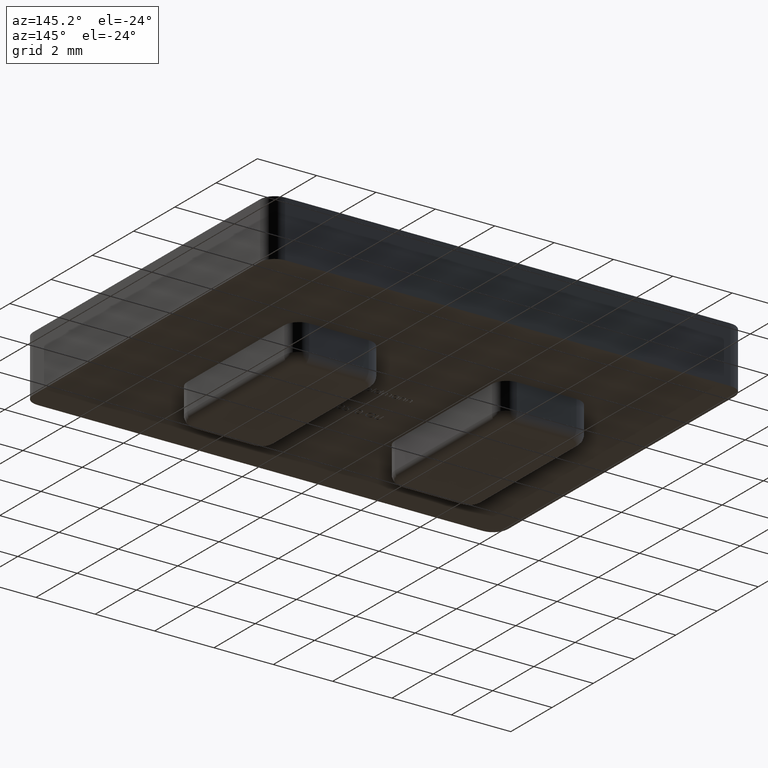
[diagram: clean part render]
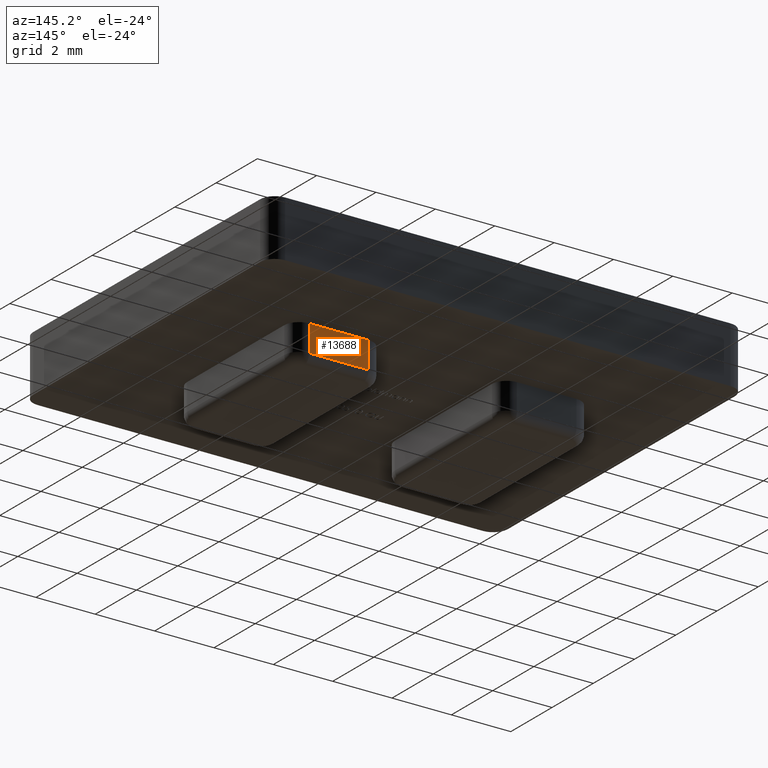
[diagram: same view with one face highlighted and labeled with its STEP entity id]
A machine part, auxiliary view. The second image highlights one B-rep face of the part: STEP entity #13688.
In plain terms, the highlighted planar face has unit normal (-0, -1, 0).
Its self-contained STEP definition (entity closure, byte-faithful):
#43 = CARTESIAN_POINT ( 'NONE',  ( 5.000000000000000000, 2.849999999999999600, -1.200000000000000000 ) ) ;
#129 = DIRECTION ( 'NONE',  ( -1.000000000000000000, 1.445602896647339200E-016, -0.0000000000000000000 ) ) ;
#697 = VERTEX_POINT ( 'NONE', #2699 ) ;
#931 = DIRECTION ( 'NONE',  ( 1.000000000000000000, -1.445602896647339200E-016, -0.0000000000000000000 ) ) ;
#1337 = ORIENTED_EDGE ( 'NONE', *, *, #11173, .T. ) ;
#1676 = CARTESIAN_POINT ( 'NONE',  ( 2.499999999999999600, 2.850000000000000100, -0.9000000000000000200 ) ) ;
#2134 = DIRECTION ( 'NONE',  ( 1.000000000000000000, -1.445602896647339200E-016, 0.0000000000000000000 ) ) ;
#2255 = FACE_OUTER_BOUND ( 'NONE', #4513, .T. ) ;
#2471 = VECTOR ( 'NONE', #9294, 1000.000000000000000 ) ;
#2699 = CARTESIAN_POINT ( 'NONE',  ( 4.500000000000000900, 2.849999999999999600, 0.0000000000000000000 ) ) ;
#3055 = CARTESIAN_POINT ( 'NONE',  ( 4.500000000000000900, 2.849999999999999600, -1.200000000000000000 ) ) ;
#3209 = LINE ( 'NONE', #6538, #8260 ) ;
#3459 = LINE ( 'NONE', #12763, #13942 ) ;
#3607 = ORIENTED_EDGE ( 'NONE', *, *, #11694, .T. ) ;
#4513 = EDGE_LOOP ( 'NONE', ( #7342, #8642, #1337, #3607 ) ) ;
#4645 = LINE ( 'NONE', #6984, #2471 ) ;
#4746 = EDGE_CURVE ( 'NONE', #13235, #9750, #3209, .T. ) ;
#6364 = DIRECTION ( 'NONE',  ( -1.445602896647339200E-016, -1.000000000000000000, 0.0000000000000000000 ) ) ;
#6538 = CARTESIAN_POINT ( 'NONE',  ( 2.500000000000000400, 2.850000000000000100, -0.9000000000000000200 ) ) ;
#6984 = CARTESIAN_POINT ( 'NONE',  ( 2.499999999999999600, 2.850000000000000100, -1.200000000000000000 ) ) ;
#7342 = ORIENTED_EDGE ( 'NONE', *, *, #8951, .T. ) ;
#7534 = PLANE ( 'NONE',  #9800 ) ;
#8256 = LINE ( 'NONE', #3055, #9262 ) ;
#8260 = VECTOR ( 'NONE', #129, 1000.000000000000000 ) ;
#8642 = ORIENTED_EDGE ( 'NONE', *, *, #4746, .T. ) ;
#8748 = CARTESIAN_POINT ( 'NONE',  ( 4.500000000000000900, 2.849999999999999600, -0.9000000000000000200 ) ) ;
#8951 = EDGE_CURVE ( 'NONE', #697, #13235, #8256, .T. ) ;
#9262 = VECTOR ( 'NONE', #13875, 1000.000000000000000 ) ;
#9294 = DIRECTION ( 'NONE',  ( 0.0000000000000000000, 0.0000000000000000000, 1.000000000000000000 ) ) ;
#9750 = VERTEX_POINT ( 'NONE', #1676 ) ;
#9800 = AXIS2_PLACEMENT_3D ( 'NONE', #43, #6364, #2134 ) ;
#11173 = EDGE_CURVE ( 'NONE', #9750, #11505, #4645, .T. ) ;
#11200 = CARTESIAN_POINT ( 'NONE',  ( 2.500000000000000400, 2.850000000000000100, 0.0000000000000000000 ) ) ;
#11505 = VERTEX_POINT ( 'NONE', #11200 ) ;
#11694 = EDGE_CURVE ( 'NONE', #11505, #697, #3459, .T. ) ;
#12763 = CARTESIAN_POINT ( 'NONE',  ( 5.000000000000000000, 2.849999999999999600, 0.0000000000000000000 ) ) ;
#13235 = VERTEX_POINT ( 'NONE', #8748 ) ;
#13688 = ADVANCED_FACE ( 'NONE', ( #2255 ), #7534, .F. ) ;
#13875 = DIRECTION ( 'NONE',  ( -0.0000000000000000000, -0.0000000000000000000, -1.000000000000000000 ) ) ;
#13942 = VECTOR ( 'NONE', #931, 1000.000000000000000 ) ;